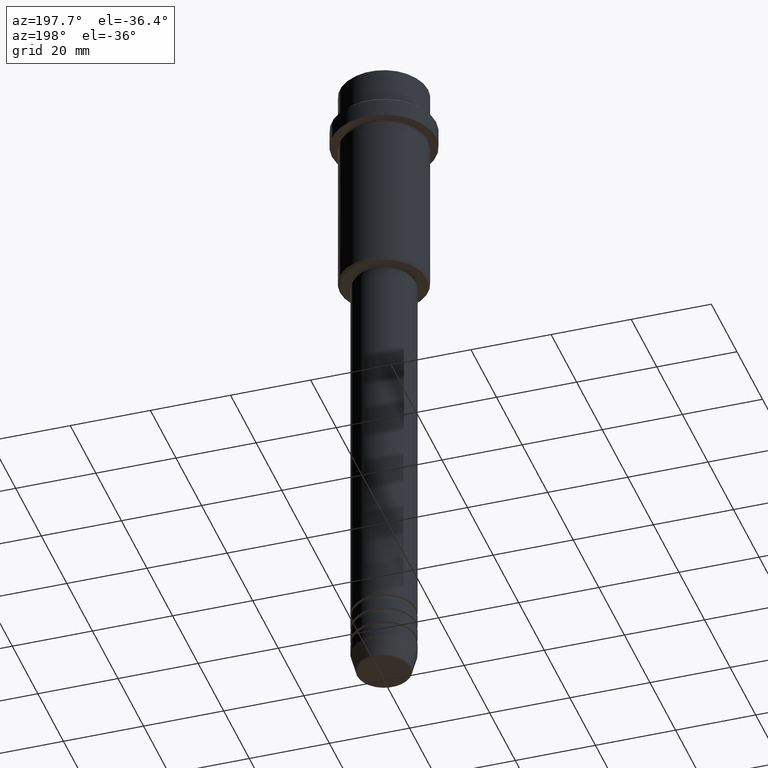
[diagram: clean part render]
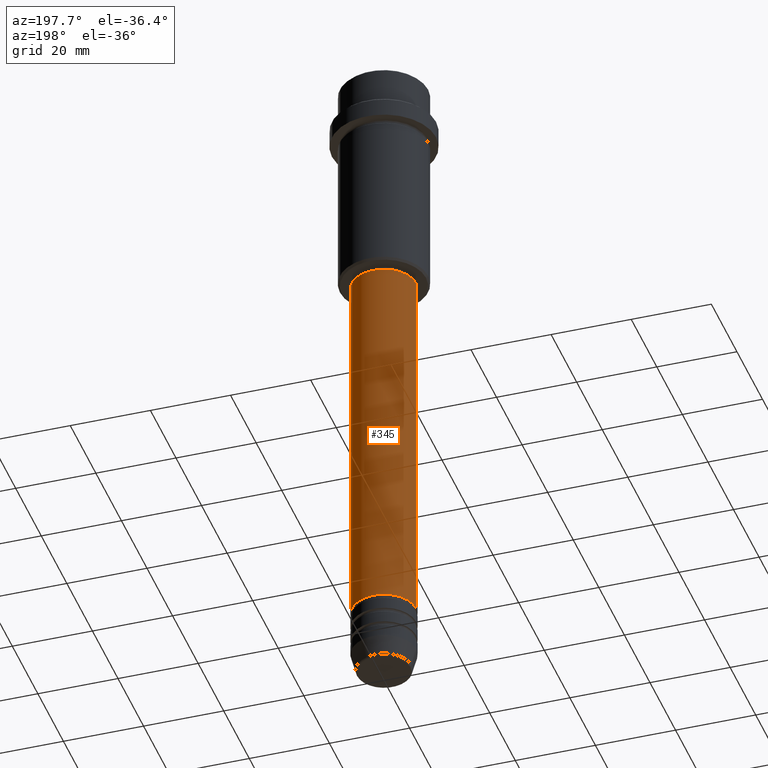
[diagram: same view with one face highlighted and labeled with its STEP entity id]
A machine part, auxiliary view. The second image highlights one B-rep face of the part: STEP entity #345.
In plain terms, the highlighted cylindrical surface (edge-blend (fillet) strip) has radius 8 mm, axis along (-0, -0, 1).
Its self-contained STEP definition (entity closure, byte-faithful):
#28 = CARTESIAN_POINT ( 'NONE',  ( 0.000000000000000000, 0.000000000000000000, -152.9999999999998863 ) ) ;
#64 = EDGE_CURVE ( 'NONE', #195, #315, #1342, .T. ) ;
#84 = EDGE_CURVE ( 'NONE', #1145, #195, #443, .T. ) ;
#85 = DIRECTION ( 'NONE',  ( -0.000000000000000000, -0.000000000000000000, 1.000000000000000000 ) ) ;
#89 = VECTOR ( 'NONE', #85, 1000.000000000000000 ) ;
#124 = CARTESIAN_POINT ( 'NONE',  ( -8.000000000000000000, 9.797174393178825657E-16, -56.99999999999995026 ) ) ;
#195 = VERTEX_POINT ( 'NONE', #1039 ) ;
#270 = EDGE_CURVE ( 'NONE', #1145, #794, #1414, .T. ) ;
#315 = VERTEX_POINT ( 'NONE', #124 ) ;
#345 = ADVANCED_FACE ( 'NONE', ( #1326 ), #685, .T. ) ;
#406 = ORIENTED_EDGE ( 'NONE', *, *, #1302, .F. ) ;
#430 = CARTESIAN_POINT ( 'NONE',  ( 8.000000000000000000, 0.000000000000000000, 0.000000000000000000 ) ) ;
#443 = CIRCLE ( 'NONE', #963, 8.000000000000000000 ) ;
#447 = CARTESIAN_POINT ( 'NONE',  ( 8.000000000000000000, 0.000000000000000000, -56.99999999999995026 ) ) ;
#523 = ORIENTED_EDGE ( 'NONE', *, *, #84, .T. ) ;
#530 = DIRECTION ( 'NONE',  ( -0.000000000000000000, -0.000000000000000000, 1.000000000000000000 ) ) ;
#570 = DIRECTION ( 'NONE',  ( -0.000000000000000000, -0.000000000000000000, 1.000000000000000000 ) ) ;
#572 = DIRECTION ( 'NONE',  ( 1.000000000000000000, 0.000000000000000000, 0.000000000000000000 ) ) ;
#591 = CARTESIAN_POINT ( 'NONE',  ( -8.000000000000000000, 9.797174393178825657E-16, 0.000000000000000000 ) ) ;
#685 = CYLINDRICAL_SURFACE ( 'NONE', #703, 8.000000000000000000 ) ;
#690 = EDGE_LOOP ( 'NONE', ( #523, #1207, #406, #1116 ) ) ;
#703 = AXIS2_PLACEMENT_3D ( 'NONE', #1110, #981, #572 ) ;
#731 = CARTESIAN_POINT ( 'NONE',  ( 0.000000000000000000, 0.000000000000000000, -56.99999999999995026 ) ) ;
#793 = DIRECTION ( 'NONE',  ( 1.000000000000000000, 0.000000000000000000, 0.000000000000000000 ) ) ;
#794 = VERTEX_POINT ( 'NONE', #447 ) ;
#882 = CIRCLE ( 'NONE', #1396, 8.000000000000000000 ) ;
#963 = AXIS2_PLACEMENT_3D ( 'NONE', #28, #570, #793 ) ;
#981 = DIRECTION ( 'NONE',  ( -0.000000000000000000, -0.000000000000000000, 1.000000000000000000 ) ) ;
#1039 = CARTESIAN_POINT ( 'NONE',  ( -8.000000000000000000, 9.797174393178825657E-16, -152.9999999999998863 ) ) ;
#1078 = VECTOR ( 'NONE', #1322, 1000.000000000000000 ) ;
#1110 = CARTESIAN_POINT ( 'NONE',  ( 0.000000000000000000, 0.000000000000000000, 0.000000000000000000 ) ) ;
#1116 = ORIENTED_EDGE ( 'NONE', *, *, #270, .F. ) ;
#1145 = VERTEX_POINT ( 'NONE', #1233 ) ;
#1177 = DIRECTION ( 'NONE',  ( 1.000000000000000000, 0.000000000000000000, 0.000000000000000000 ) ) ;
#1207 = ORIENTED_EDGE ( 'NONE', *, *, #64, .T. ) ;
#1233 = CARTESIAN_POINT ( 'NONE',  ( 8.000000000000000000, 0.000000000000000000, -152.9999999999998863 ) ) ;
#1302 = EDGE_CURVE ( 'NONE', #794, #315, #882, .T. ) ;
#1322 = DIRECTION ( 'NONE',  ( -0.000000000000000000, -0.000000000000000000, 1.000000000000000000 ) ) ;
#1326 = FACE_OUTER_BOUND ( 'NONE', #690, .T. ) ;
#1342 = LINE ( 'NONE', #591, #1078 ) ;
#1396 = AXIS2_PLACEMENT_3D ( 'NONE', #731, #530, #1177 ) ;
#1414 = LINE ( 'NONE', #430, #89 ) ;